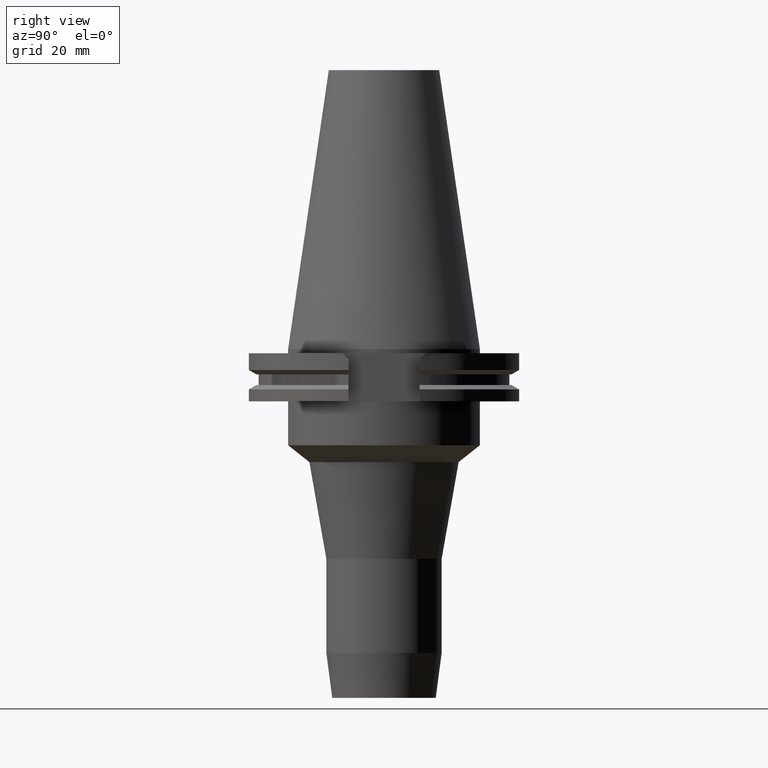
[diagram: clean part render]
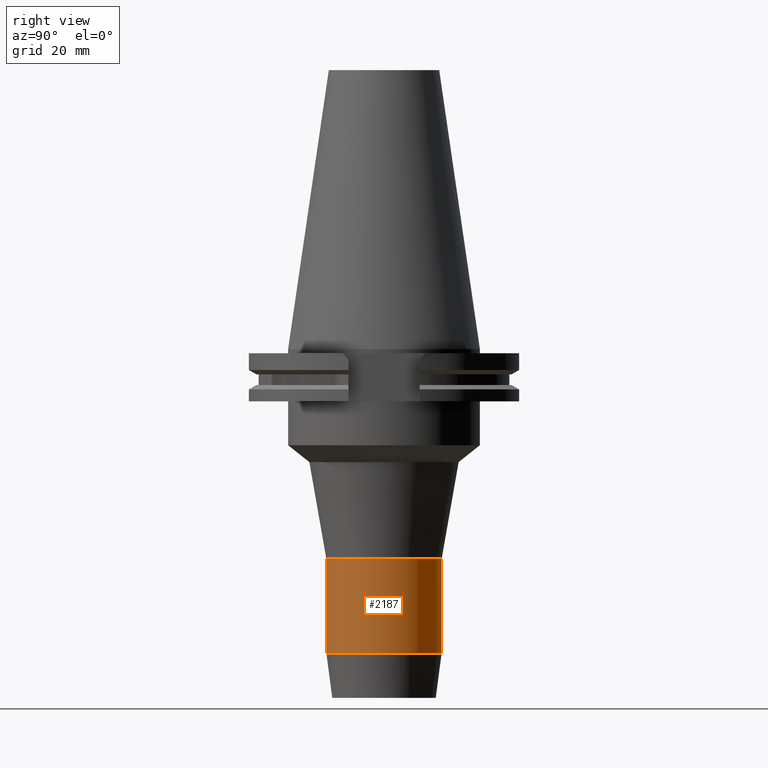
[diagram: same view with one face highlighted and labeled with its STEP entity id]
A machine part, right view. The second image highlights one B-rep face of the part: STEP entity #2187.
In plain terms, the highlighted cylindrical surface (partial cylindrical patch) has radius 21 mm, axis along (0, 0, 1).
Its self-contained STEP definition (entity closure, byte-faithful):
#890=CARTESIAN_POINT('',(0.E0,0.E0,-7.6375E1));
#891=DIRECTION('',(0.E0,0.E0,-1.E0));
#892=DIRECTION('',(0.E0,1.E0,0.E0));
#893=AXIS2_PLACEMENT_3D('',#890,#891,#892);
#906=DIRECTION('',(0.E0,7.092994341474E-14,-1.E0));
#907=VECTOR('',#906,3.425994776410E1);
#908=CARTESIAN_POINT('',(0.E0,2.1E1,-7.6375E1));
#909=LINE('',#908,#907);
#913=DIRECTION('',(0.E0,-7.092994341474E-14,-1.E0));
#914=VECTOR('',#913,3.425994776410E1);
#915=CARTESIAN_POINT('',(0.E0,-2.1E1,-7.6375E1));
#916=LINE('',#915,#914);
#942=CARTESIAN_POINT('',(0.E0,0.E0,-1.106349477641E2));
#943=DIRECTION('',(0.E0,0.E0,1.E0));
#944=DIRECTION('',(0.E0,-1.E0,0.E0));
#945=AXIS2_PLACEMENT_3D('',#942,#943,#944);
#1356=CARTESIAN_POINT('',(0.E0,2.1E1,-7.6375E1));
#1357=VERTEX_POINT('',#1356);
#1358=CARTESIAN_POINT('',(0.E0,-2.1E1,-7.6375E1));
#1359=VERTEX_POINT('',#1358);
#1360=CARTESIAN_POINT('',(0.E0,2.1E1,-1.106349477641E2));
#1361=VERTEX_POINT('',#1360);
#1362=CARTESIAN_POINT('',(0.E0,-2.100000000001E1,-1.106349477641E2));
#1363=VERTEX_POINT('',#1362);
#2173=CARTESIAN_POINT('',(0.E0,0.E0,-1.3843E2));
#2174=DIRECTION('',(0.E0,0.E0,1.E0));
#2175=DIRECTION('',(0.E0,1.E0,0.E0));
#2176=AXIS2_PLACEMENT_3D('',#2173,#2174,#2175);
#2177=CYLINDRICAL_SURFACE('',#2176,2.1E1);
#2179=ORIENTED_EDGE('',*,*,#2178,.T.);
#2181=ORIENTED_EDGE('',*,*,#2180,.F.);
#2183=ORIENTED_EDGE('',*,*,#2182,.F.);
#2184=ORIENTED_EDGE('',*,*,#2166,.F.);
#2185=EDGE_LOOP('',(#2179,#2181,#2183,#2184));
#2186=FACE_OUTER_BOUND('',#2185,.F.);
#894=CIRCLE('',#893,2.1E1);
#946=CIRCLE('',#945,2.100000000001E1);
#2166=EDGE_CURVE('',#1357,#1359,#894,.T.);
#2178=EDGE_CURVE('',#1357,#1361,#909,.T.);
#2180=EDGE_CURVE('',#1363,#1361,#946,.T.);
#2182=EDGE_CURVE('',#1359,#1363,#916,.T.);
#2187=ADVANCED_FACE('',(#2186),#2177,.T.);